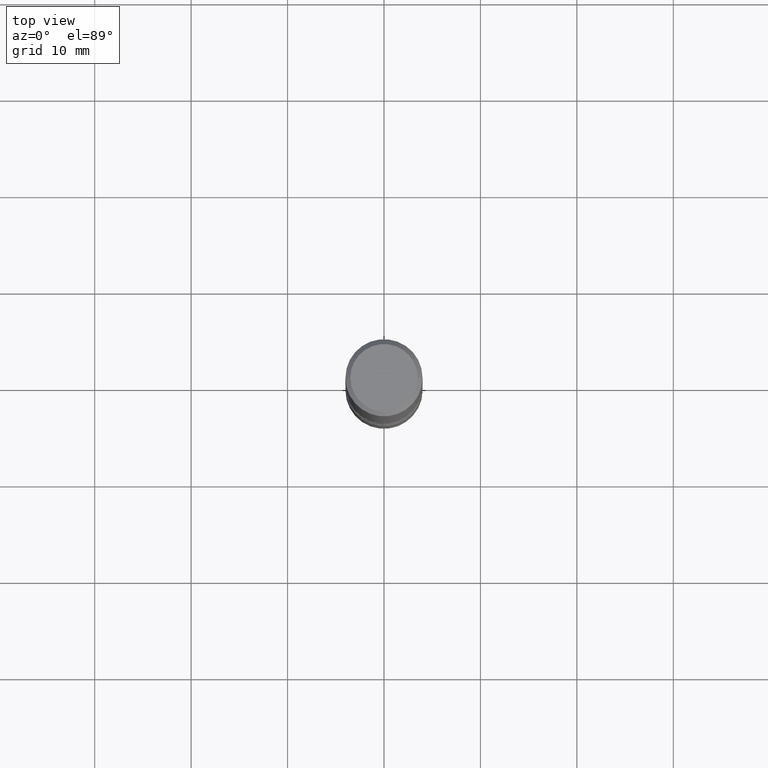
[diagram: clean part render]
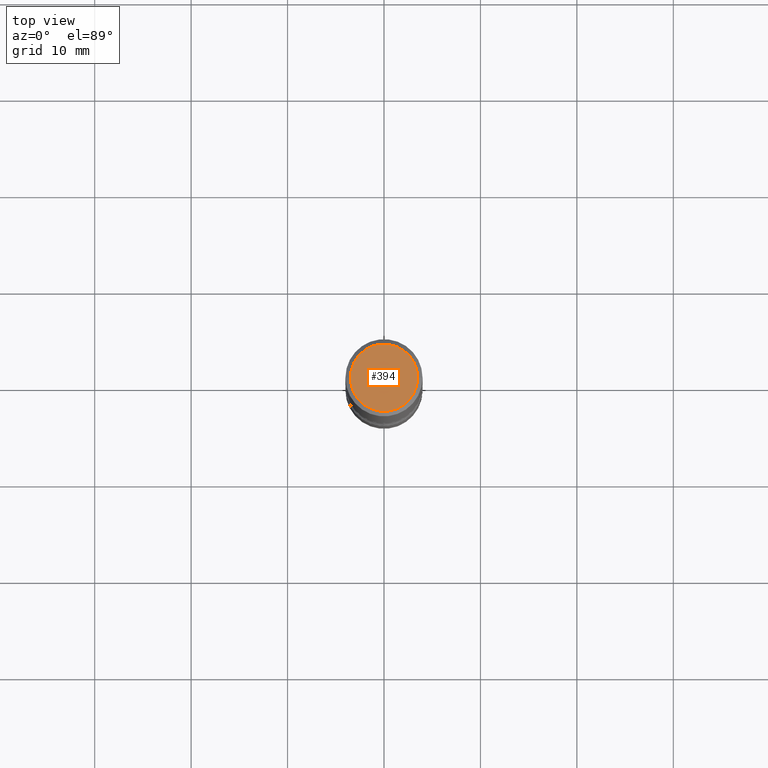
[diagram: same view with one face highlighted and labeled with its STEP entity id]
A machine part, top view. The second image highlights one B-rep face of the part: STEP entity #394.
In plain terms, the highlighted planar face has unit normal (0, -0, -1).
Its self-contained STEP definition (entity closure, byte-faithful):
#13 = VERTEX_POINT ( 'NONE', #328 ) ;
#49 = EDGE_CURVE ( 'NONE', #13, #358, #352, .T. ) ;
#53 = AXIS2_PLACEMENT_3D ( 'NONE', #171, #122, #414 ) ;
#70 = ORIENTED_EDGE ( 'NONE', *, *, #348, .T. ) ;
#108 = DIRECTION ( 'NONE',  ( -1.000000000000000000, 6.982962677686265922E-15, -4.876176775795935793E-29 ) ) ;
#122 = DIRECTION ( 'NONE',  ( -2.445468806185136597E-29, 3.491481338843145583E-15, 1.000000000000000000 ) ) ;
#124 = AXIS2_PLACEMENT_3D ( 'NONE', #395, #477, #108 ) ;
#171 = CARTESIAN_POINT ( 'NONE',  ( -1.043851414335219820E-46, 1.490343170380447200E-32, 4.268512490100411279E-18 ) ) ;
#209 = DIRECTION ( 'NONE',  ( 1.000000000000000000, -6.982962677686265922E-15, 4.876173381029105087E-29 ) ) ;
#242 = AXIS2_PLACEMENT_3D ( 'NONE', #257, #245, #209 ) ;
#245 = DIRECTION ( 'NONE',  ( -2.445468806185136597E-29, 3.491481338843145583E-15, 1.000000000000000000 ) ) ;
#257 = CARTESIAN_POINT ( 'NONE',  ( -1.043851414335219820E-46, 1.490343170380447200E-32, 4.268512490100411279E-18 ) ) ;
#328 = CARTESIAN_POINT ( 'NONE',  ( -0.1374999999999998723, 9.950721815702919413E-16, 4.268512490093574228E-18 ) ) ;
#336 = CARTESIAN_POINT ( 'NONE',  ( 0.1374999999999998723, -1.046838268059731505E-15, 4.268512490107428597E-18 ) ) ;
#348 = EDGE_CURVE ( 'NONE', #358, #13, #363, .T. ) ;
#352 = CIRCLE ( 'NONE', #53, 0.1374999999999998723 ) ;
#358 = VERTEX_POINT ( 'NONE', #336 ) ;
#363 = CIRCLE ( 'NONE', #242, 0.1374999999999998723 ) ;
#391 = FACE_OUTER_BOUND ( 'NONE', #432, .T. ) ;
#394 = ADVANCED_FACE ( 'NONE', ( #391 ), #398, .F. ) ;
#395 = CARTESIAN_POINT ( 'NONE',  ( 9.601573681818604894E-16, 0.1374999999999998723, -4.779444278458818063E-16 ) ) ;
#398 = PLANE ( 'NONE',  #124 ) ;
#404 = ORIENTED_EDGE ( 'NONE', *, *, #49, .T. ) ;
#414 = DIRECTION ( 'NONE',  ( 1.000000000000000000, -6.982962677686265922E-15, 4.876173381029105087E-29 ) ) ;
#432 = EDGE_LOOP ( 'NONE', ( #404, #70 ) ) ;
#477 = DIRECTION ( 'NONE',  ( 2.438088387897960049E-29, -3.491481338843145188E-15, -1.000000000000000000 ) ) ;